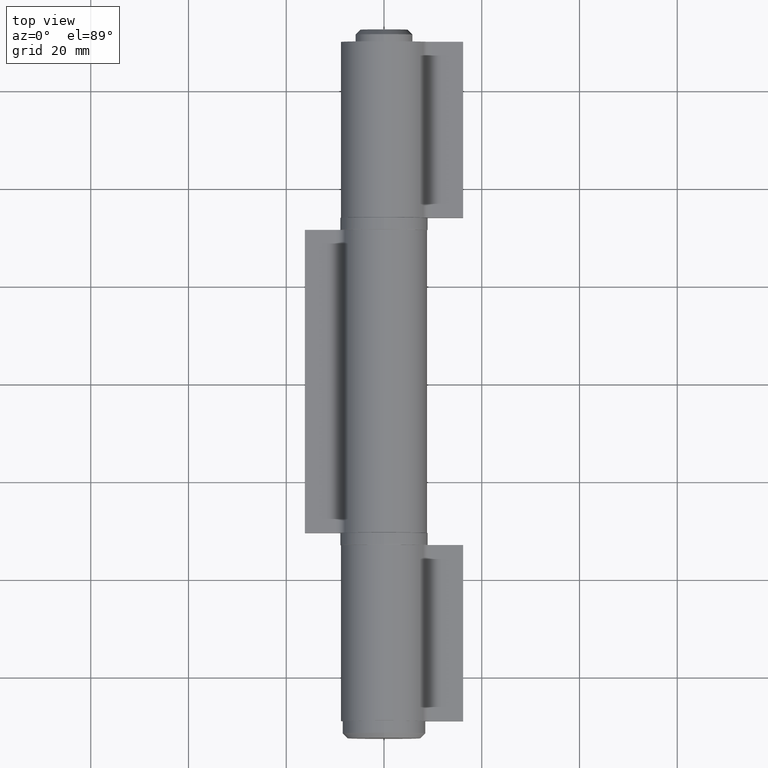
[diagram: clean part render]
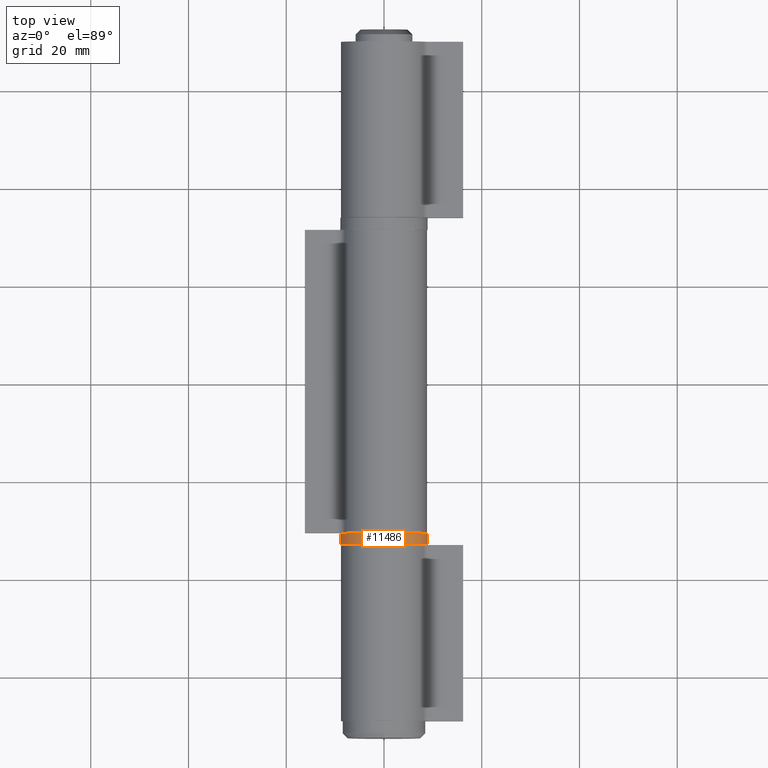
[diagram: same view with one face highlighted and labeled with its STEP entity id]
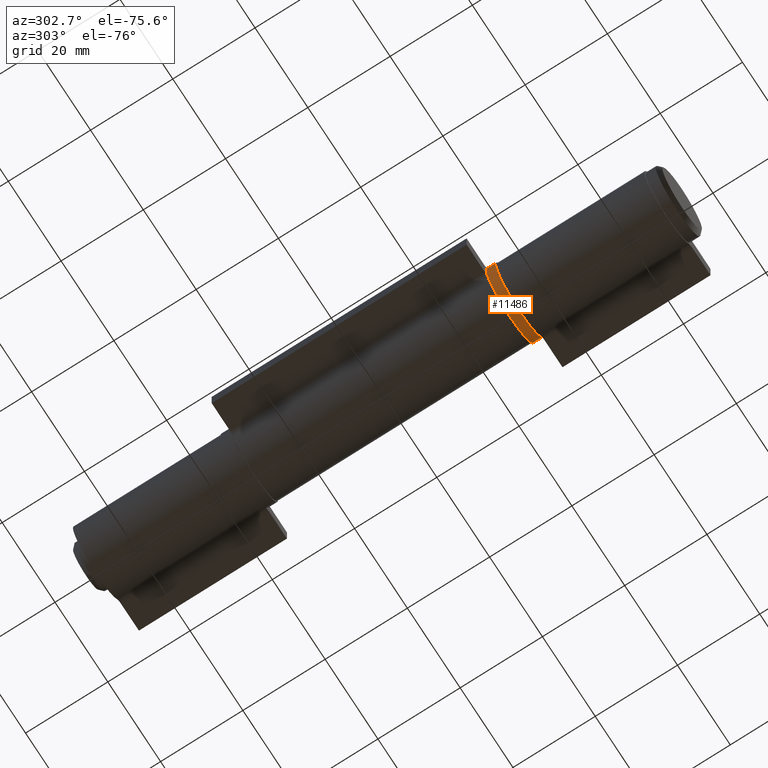
[diagram: same view with one face highlighted and labeled with its STEP entity id]
A machine part, top view. The second image highlights one B-rep face of the part: STEP entity #11486.
A second angle (auxiliary view) of the same face is appended — the face is thin or edge-on in the first view.
In plain terms, the highlighted cylindrical surface (bore or boss wall) has radius 9 mm, axis along (-0, -1, -0).
Its self-contained STEP definition (entity closure, byte-faithful):
#418 = ORIENTED_EDGE ( 'NONE', *, *, #1963, .T. ) ;
#478 = FACE_OUTER_BOUND ( 'NONE', #2802, .T. ) ;
#1752 = VERTEX_POINT ( 'NONE', #3865 ) ;
#1963 = EDGE_CURVE ( 'NONE', #1752, #1752, #10166, .T. ) ;
#2468 = AXIS2_PLACEMENT_3D ( 'NONE', #10827, #2676, #7341 ) ;
#2676 = DIRECTION ( 'NONE',  ( -0.000000000000000000, -1.000000000000000000, -0.000000000000000000 ) ) ;
#2701 = DIRECTION ( 'NONE',  ( 0.000000000000000000, 1.000000000000000000, 0.000000000000000000 ) ) ;
#2802 = EDGE_LOOP ( 'NONE', ( #10466 ) ) ;
#3865 = CARTESIAN_POINT ( 'NONE',  ( 0.000000000000000000, 1.149999999999999911, 9.000000000000000000 ) ) ;
#4192 = AXIS2_PLACEMENT_3D ( 'NONE', #8153, #2701, #4528 ) ;
#4331 = DIRECTION ( 'NONE',  ( 0.000000000000000000, 0.000000000000000000, -1.000000000000000000 ) ) ;
#4433 = CYLINDRICAL_SURFACE ( 'NONE', #9668, 9.000000000000000000 ) ;
#4528 = DIRECTION ( 'NONE',  ( 0.000000000000000000, 0.000000000000000000, 1.000000000000000000 ) ) ;
#6038 = CIRCLE ( 'NONE', #4192, 9.000000000000000000 ) ;
#7341 = DIRECTION ( 'NONE',  ( 0.000000000000000000, 0.000000000000000000, 1.000000000000000000 ) ) ;
#8100 = FACE_OUTER_BOUND ( 'NONE', #10043, .T. ) ;
#8153 = CARTESIAN_POINT ( 'NONE',  ( 0.000000000000000000, -1.150000000000000133, 0.000000000000000000 ) ) ;
#8577 = EDGE_CURVE ( 'NONE', #10797, #10797, #6038, .T. ) ;
#9293 = CARTESIAN_POINT ( 'NONE',  ( 0.000000000000000000, -1.150000000000000133, 9.000000000000000000 ) ) ;
#9668 = AXIS2_PLACEMENT_3D ( 'NONE', #11655, #10624, #4331 ) ;
#10043 = EDGE_LOOP ( 'NONE', ( #418 ) ) ;
#10166 = CIRCLE ( 'NONE', #2468, 9.000000000000000000 ) ;
#10466 = ORIENTED_EDGE ( 'NONE', *, *, #8577, .T. ) ;
#10624 = DIRECTION ( 'NONE',  ( -0.000000000000000000, -1.000000000000000000, -0.000000000000000000 ) ) ;
#10797 = VERTEX_POINT ( 'NONE', #9293 ) ;
#10827 = CARTESIAN_POINT ( 'NONE',  ( 0.000000000000000000, 1.149999999999999911, 0.000000000000000000 ) ) ;
#11486 = ADVANCED_FACE ( 'NONE', ( #478, #8100 ), #4433, .T. ) ;
#11655 = CARTESIAN_POINT ( 'NONE',  ( 0.000000000000000000, 1.250000000000000000, 0.000000000000000000 ) ) ;